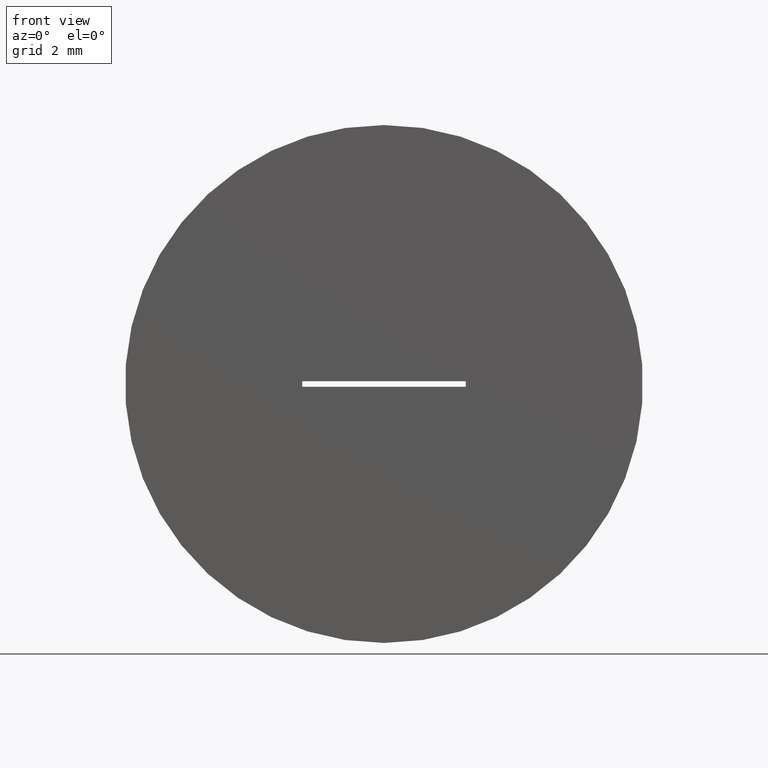
[diagram: clean part render]
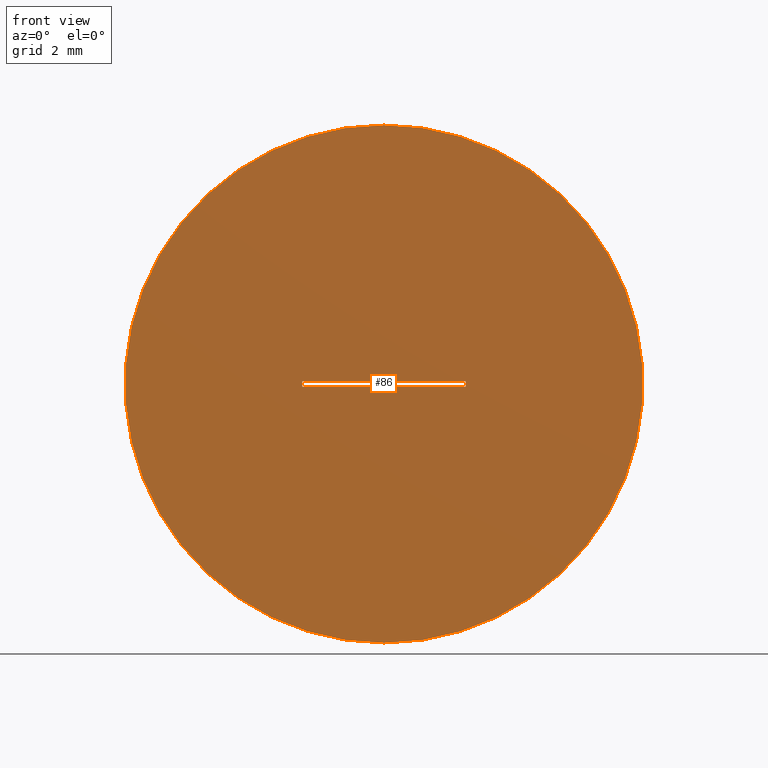
[diagram: same view with one face highlighted and labeled with its STEP entity id]
A machine part, front view. The second image highlights one B-rep face of the part: STEP entity #86.
In plain terms, the highlighted planar face has unit normal (0, 1, 0).
Its self-contained STEP definition (entity closure, byte-faithful):
#6 = VERTEX_POINT ( 'NONE', #172 ) ;
#7 = EDGE_CURVE ( 'NONE', #290, #6, #280, .T. ) ;
#15 = CARTESIAN_POINT ( 'NONE',  ( 0.000000000000000000, 0.000000000000000000, 0.000000000000000000 ) ) ;
#18 = LINE ( 'NONE', #249, #245 ) ;
#39 = CARTESIAN_POINT ( 'NONE',  ( -1.500000000000000000, 0.000000000000000000, -0.04999999999999999584 ) ) ;
#45 = AXIS2_PLACEMENT_3D ( 'NONE', #207, #111, #209 ) ;
#57 = EDGE_CURVE ( 'NONE', #240, #290, #18, .T. ) ;
#73 = EDGE_CURVE ( 'NONE', #75, #240, #204, .T. ) ;
#75 = VERTEX_POINT ( 'NONE', #132 ) ;
#77 = EDGE_CURVE ( 'NONE', #244, #295, #100, .T. ) ;
#79 = FACE_BOUND ( 'NONE', #190, .T. ) ;
#84 = DIRECTION ( 'NONE',  ( -1.000000000000000000, -0.000000000000000000, -0.000000000000000000 ) ) ;
#85 = AXIS2_PLACEMENT_3D ( 'NONE', #15, #134, #128 ) ;
#86 = ADVANCED_FACE ( 'NONE', ( #296, #79 ), #174, .F. ) ;
#90 = CARTESIAN_POINT ( 'NONE',  ( -1.500000000000000000, 0.000000000000000000, 0.05000000000000000971 ) ) ;
#92 = EDGE_LOOP ( 'NONE', ( #173, #272 ) ) ;
#97 = ORIENTED_EDGE ( 'NONE', *, *, #73, .T. ) ;
#98 = DIRECTION ( 'NONE',  ( 0.000000000000000000, 0.000000000000000000, 1.000000000000000000 ) ) ;
#100 = CIRCLE ( 'NONE', #210, 4.750000000000000000 ) ;
#105 = DIRECTION ( 'NONE',  ( 0.000000000000000000, 0.000000000000000000, 1.000000000000000000 ) ) ;
#111 = DIRECTION ( 'NONE',  ( 0.000000000000000000, 1.000000000000000000, 0.000000000000000000 ) ) ;
#124 = ORIENTED_EDGE ( 'NONE', *, *, #7, .T. ) ;
#128 = DIRECTION ( 'NONE',  ( 0.000000000000000000, -0.000000000000000000, 1.000000000000000000 ) ) ;
#132 = CARTESIAN_POINT ( 'NONE',  ( 1.500000000000000000, 0.000000000000000000, -0.04999999999999999584 ) ) ;
#134 = DIRECTION ( 'NONE',  ( 0.000000000000000000, 1.000000000000000000, 0.000000000000000000 ) ) ;
#137 = CARTESIAN_POINT ( 'NONE',  ( -1.500000000000000000, 0.000000000000000000, -0.04999999999999999584 ) ) ;
#140 = CARTESIAN_POINT ( 'NONE',  ( 0.000000000000000000, 0.000000000000000000, -4.750000000000000000 ) ) ;
#144 = ORIENTED_EDGE ( 'NONE', *, *, #179, .T. ) ;
#159 = DIRECTION ( 'NONE',  ( 0.000000000000000000, 1.000000000000000000, 0.000000000000000000 ) ) ;
#171 = VECTOR ( 'NONE', #304, 1000.000000000000000 ) ;
#172 = CARTESIAN_POINT ( 'NONE',  ( 1.500000000000000000, 0.000000000000000000, 0.05000000000000000971 ) ) ;
#173 = ORIENTED_EDGE ( 'NONE', *, *, #250, .F. ) ;
#174 = PLANE ( 'NONE',  #85 ) ;
#175 = VECTOR ( 'NONE', #202, 1000.000000000000000 ) ;
#179 = EDGE_CURVE ( 'NONE', #6, #75, #198, .T. ) ;
#190 = EDGE_LOOP ( 'NONE', ( #144, #97, #219, #124 ) ) ;
#197 = CARTESIAN_POINT ( 'NONE',  ( 0.000000000000000000, 0.000000000000000000, 0.000000000000000000 ) ) ;
#198 = LINE ( 'NONE', #277, #171 ) ;
#202 = DIRECTION ( 'NONE',  ( 1.000000000000000000, 0.000000000000000000, 0.000000000000000000 ) ) ;
#204 = LINE ( 'NONE', #39, #293 ) ;
#207 = CARTESIAN_POINT ( 'NONE',  ( 0.000000000000000000, 0.000000000000000000, 0.000000000000000000 ) ) ;
#209 = DIRECTION ( 'NONE',  ( 0.000000000000000000, 0.000000000000000000, 1.000000000000000000 ) ) ;
#210 = AXIS2_PLACEMENT_3D ( 'NONE', #197, #159, #98 ) ;
#219 = ORIENTED_EDGE ( 'NONE', *, *, #57, .T. ) ;
#234 = CARTESIAN_POINT ( 'NONE',  ( 5.817072295949927426E-16, 0.000000000000000000, 4.750000000000000000 ) ) ;
#240 = VERTEX_POINT ( 'NONE', #137 ) ;
#244 = VERTEX_POINT ( 'NONE', #234 ) ;
#245 = VECTOR ( 'NONE', #105, 1000.000000000000000 ) ;
#246 = CARTESIAN_POINT ( 'NONE',  ( -1.500000000000000000, 0.000000000000000000, 0.05000000000000000971 ) ) ;
#249 = CARTESIAN_POINT ( 'NONE',  ( -1.500000000000000000, 0.000000000000000000, -0.04999999999999999584 ) ) ;
#250 = EDGE_CURVE ( 'NONE', #295, #244, #288, .T. ) ;
#272 = ORIENTED_EDGE ( 'NONE', *, *, #77, .F. ) ;
#277 = CARTESIAN_POINT ( 'NONE',  ( 1.500000000000000000, 0.000000000000000000, -0.04999999999999999584 ) ) ;
#280 = LINE ( 'NONE', #246, #175 ) ;
#288 = CIRCLE ( 'NONE', #45, 4.750000000000000000 ) ;
#290 = VERTEX_POINT ( 'NONE', #90 ) ;
#293 = VECTOR ( 'NONE', #84, 1000.000000000000000 ) ;
#295 = VERTEX_POINT ( 'NONE', #140 ) ;
#296 = FACE_OUTER_BOUND ( 'NONE', #92, .T. ) ;
#304 = DIRECTION ( 'NONE',  ( -0.000000000000000000, -0.000000000000000000, -1.000000000000000000 ) ) ;